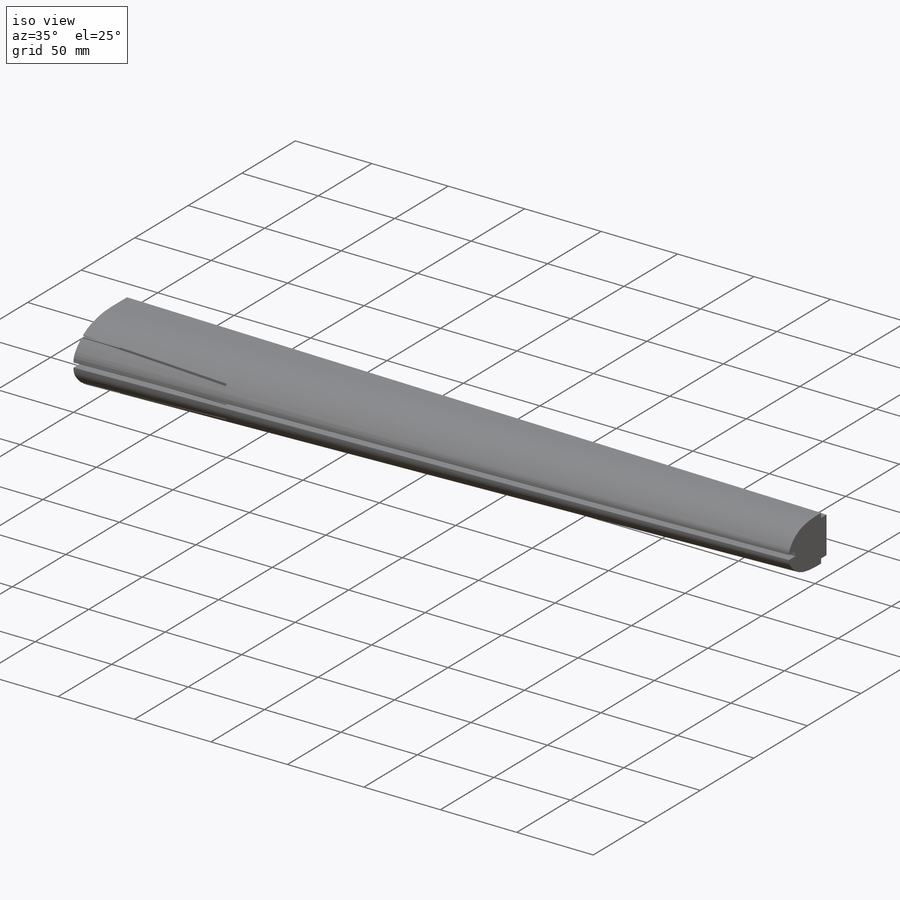
[diagram: iso view]
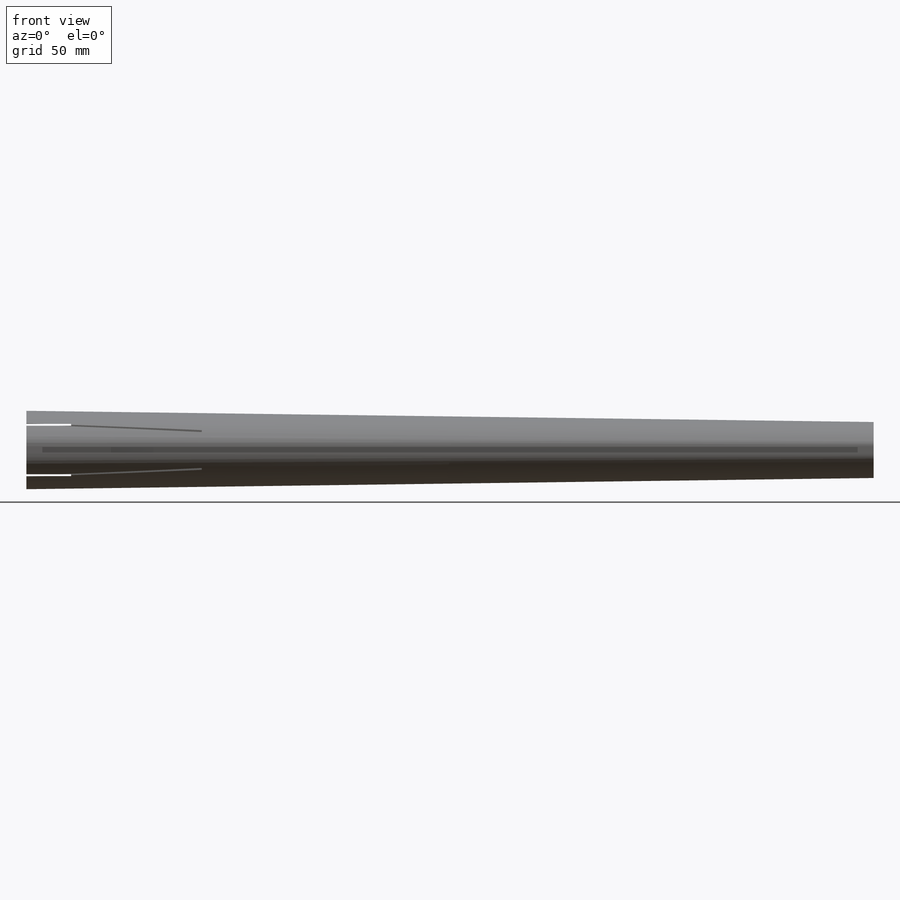
[diagram: front view]
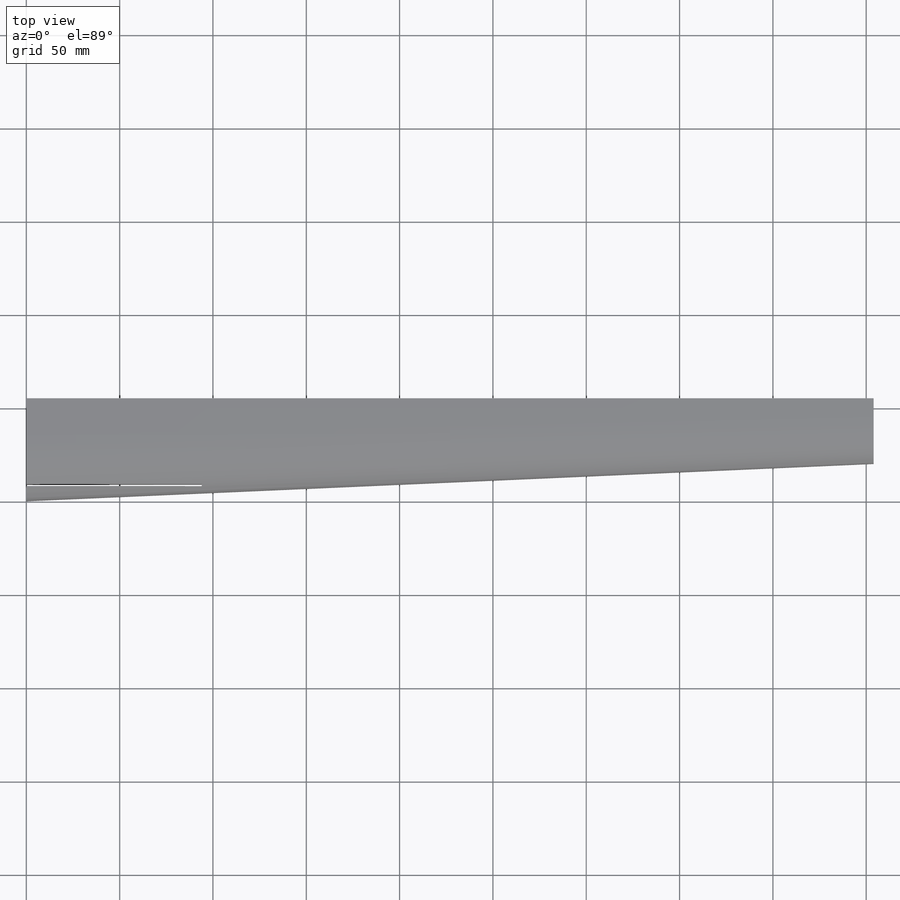
[diagram: top view]
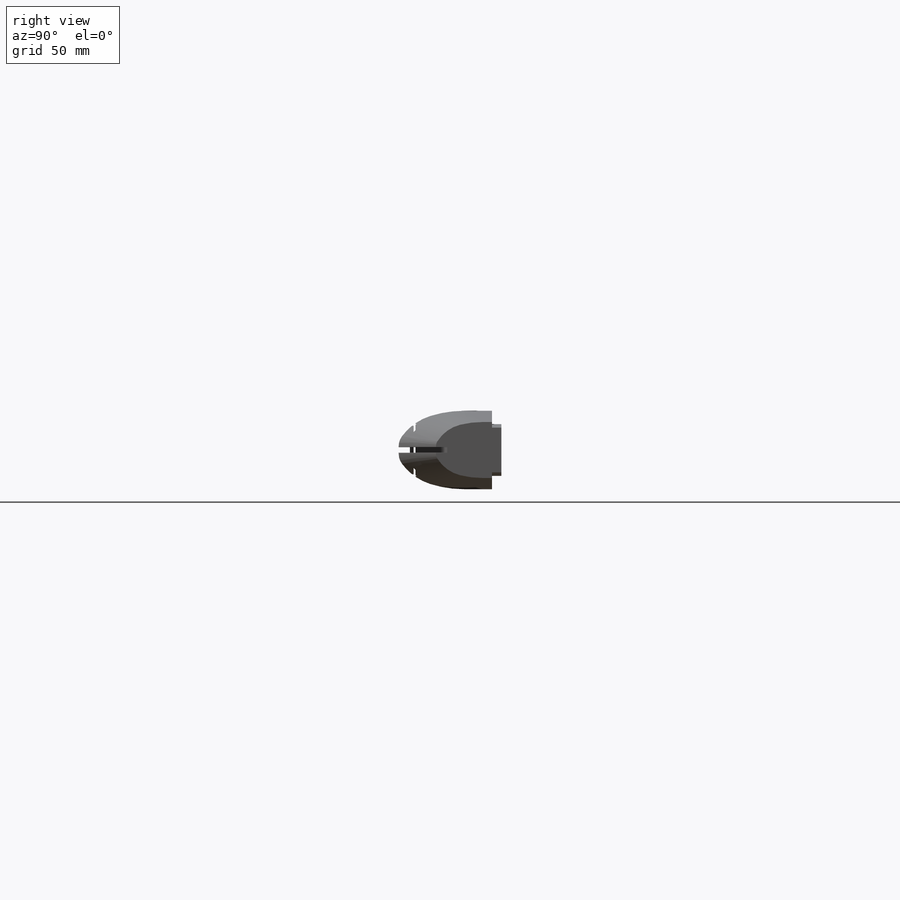
[diagram: right view]
SOLIDWORKS PART (.sldprt)
format: sldprt  version: not decoded by parser v0  size: 1,221,120 bytes
history: native  units: mm
features: sketch x8, plane x2, cut_extrude x2, material x1 (+12 scaffold rows collapsed)
feature tree (25):
  scaffold x12  (default folders/planes/origin — collapsed)
  material  "Material <not specified>"
  sketch  "Sketch1"  dims[c1.D5=9.0mm c1.D6=56.0mm c1.D7=60.0mm c1.D11=5.0mm c1.D12=20.0mm c1.D13=50.0mm c2.D6=30.0mm c2.D1=55.0mm c2.D2=4.0mm c2.D3=42.0mm c2.D4=20.0mm c2.D8=11.0mm c2.D9=30.0mm c2.D10=35.0mm c3.D8=4.0mm c3.D14=3.0mm c3.D15=6.0mm c3.D16=3.0mm c3.D17=6.0mm c3.D18=11.0mm c3.D19=5.0mm c3.D20=7.0mm c3.D21=3.0mm c3.D22=5.0mm c4.D18=10.0mm c4.D23=11.0mm]
  sketch  "Sketch2"
  sketch  "Sketch9"  dims[D1=6.0mm]
  plane  "Plane1"  Offset=454mm
  sketch  "Sketch3"
  plane  "Plane2"  Offset=484mm
  sketch  "Sketch8"
  sketch  "Sketch7"
  sketch  "Sketch4"  dims[D1=1.0mm D2=28.0mm]
  cut_extrude  "Cut-Extrude1"  Depth=24mm
  sketch  "Sketch5"  dims[D1=1.0mm D2=8.0mm D3=35.0mm]
  cut_extrude  "Cut-Extrude2"  Depth=94mm
decode coverage: 6 of 10 modeling features carry decoded parameters
note: suppression state not decoded; provenance and decode notes live in map.json
